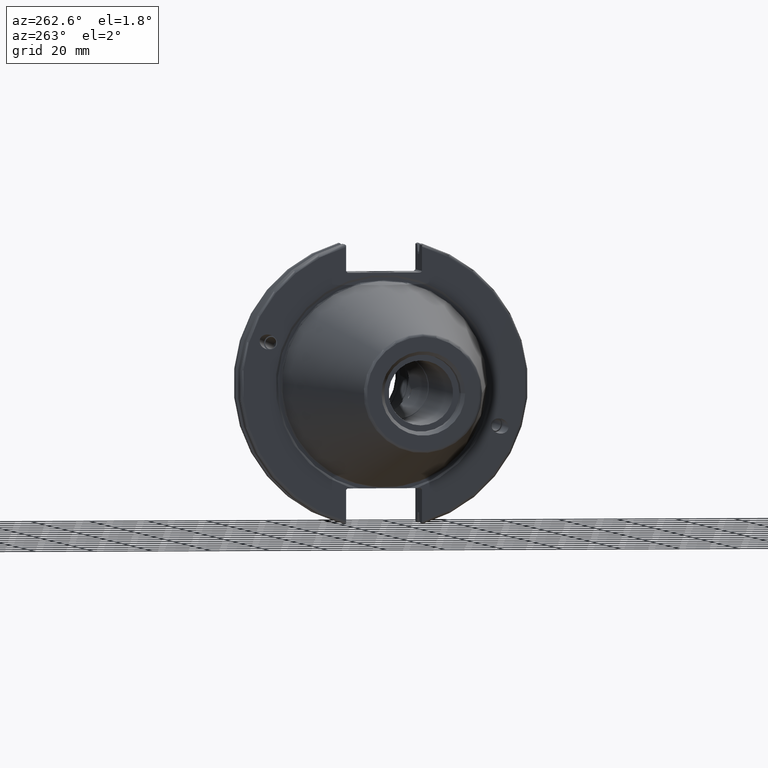
[diagram: clean part render]
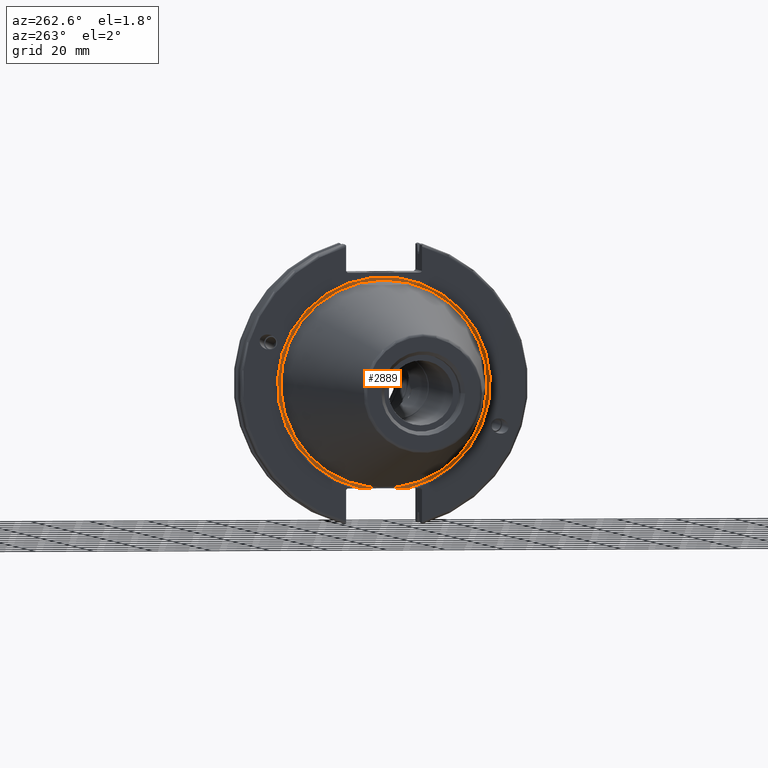
[diagram: same view with one face highlighted and labeled with its STEP entity id]
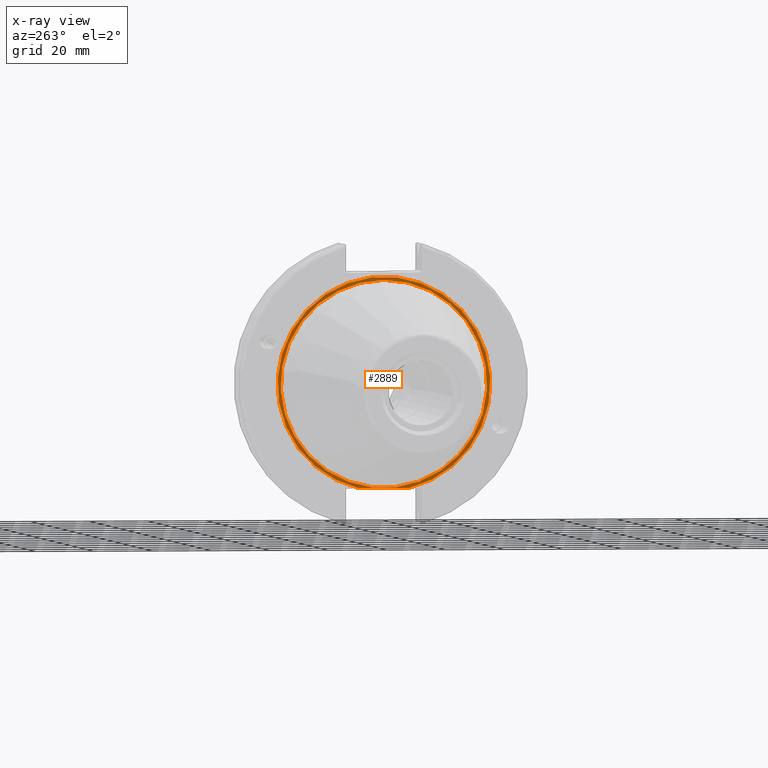
[diagram: x-ray of the same camera — body ghosted, the highlighted face saturated]
A machine part, auxiliary view. The second image highlights one B-rep face of the part: STEP entity #2889.
The next image is the same camera in x-ray: the body ghosted, the highlighted face saturated — about 0% of this face is hidden behind the body in this view.
In plain terms, the highlighted planar face has unit normal (-1, 0, 0).
Its self-contained STEP definition (entity closure, byte-faithful):
#282=LINE('',#5095,#431);
#431=VECTOR('',#3733,10.);
#558=FACE_BOUND('',#897,.T.);
#600=PLANE('',#3210);
#714=FACE_OUTER_BOUND('',#896,.T.);
#896=EDGE_LOOP('',(#2356,#2357));
#897=EDGE_LOOP('',(#2358));
#1072=CIRCLE('',#3209,35.225);
#1073=CIRCLE('',#3211,36.3071796769724);
#1299=VERTEX_POINT('',#5090);
#1300=VERTEX_POINT('',#5094);
#1313=VERTEX_POINT('',#5166);
#1655=EDGE_CURVE('',#1300,#1299,#282,.T.);
#1687=EDGE_CURVE('',#1313,#1313,#1072,.T.);
#1688=EDGE_CURVE('',#1300,#1299,#1073,.T.);
#2356=ORIENTED_EDGE('',*,*,#1655,.T.);
#2357=ORIENTED_EDGE('',*,*,#1688,.F.);
#2358=ORIENTED_EDGE('',*,*,#1687,.T.);
#2889=ADVANCED_FACE('',(#714,#558),#600,.T.);
#3209=AXIS2_PLACEMENT_3D('',#5168,#3817,#3818);
#3210=AXIS2_PLACEMENT_3D('',#5169,#3819,#3820);
#3211=AXIS2_PLACEMENT_3D('',#5170,#3821,#3822);
#3733=DIRECTION('',(0.,-1.,0.));
#3817=DIRECTION('center_axis',(1.,0.,0.));
#3818=DIRECTION('ref_axis',(0.,0.,-1.));
#3819=DIRECTION('center_axis',(-1.,0.,0.));
#3820=DIRECTION('ref_axis',(0.,0.,1.));
#3821=DIRECTION('center_axis',(1.,0.,0.));
#3822=DIRECTION('ref_axis',(0.,0.,-1.));
#5090=CARTESIAN_POINT('',(1.9,-8.46744708256043,-35.306));
#5094=CARTESIAN_POINT('',(1.9,8.46744708256043,-35.306));
#5095=CARTESIAN_POINT('',(1.9,18.1535898384862,-35.306));
#5166=CARTESIAN_POINT('',(1.9,-4.31381834999655E-15,35.225));
#5168=CARTESIAN_POINT('Origin',(1.9,0.,0.));
#5169=CARTESIAN_POINT('Origin',(1.9,36.3071796769724,0.));
#5170=CARTESIAN_POINT('Origin',(1.9,0.,0.));